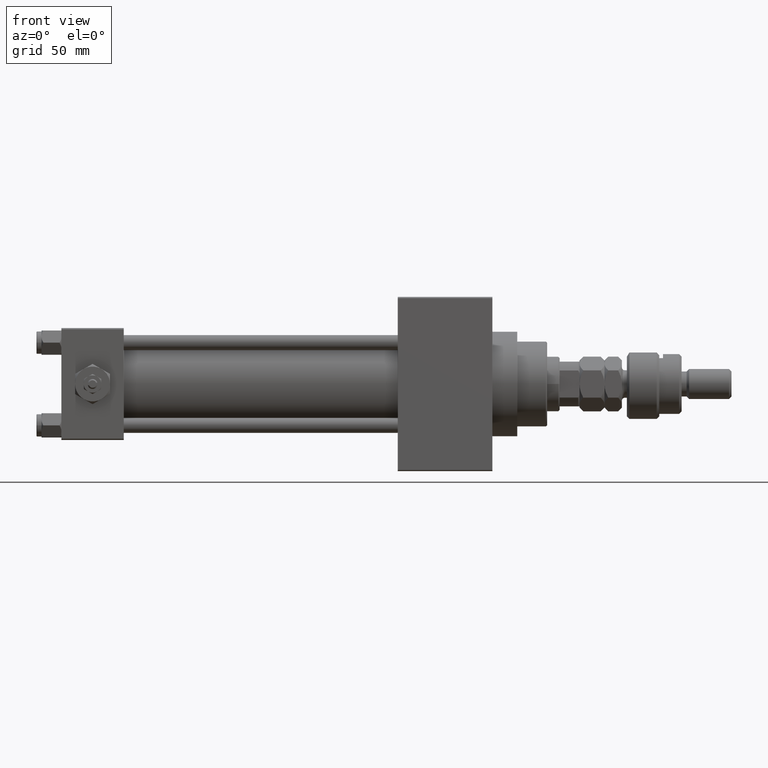
[diagram: clean part render]
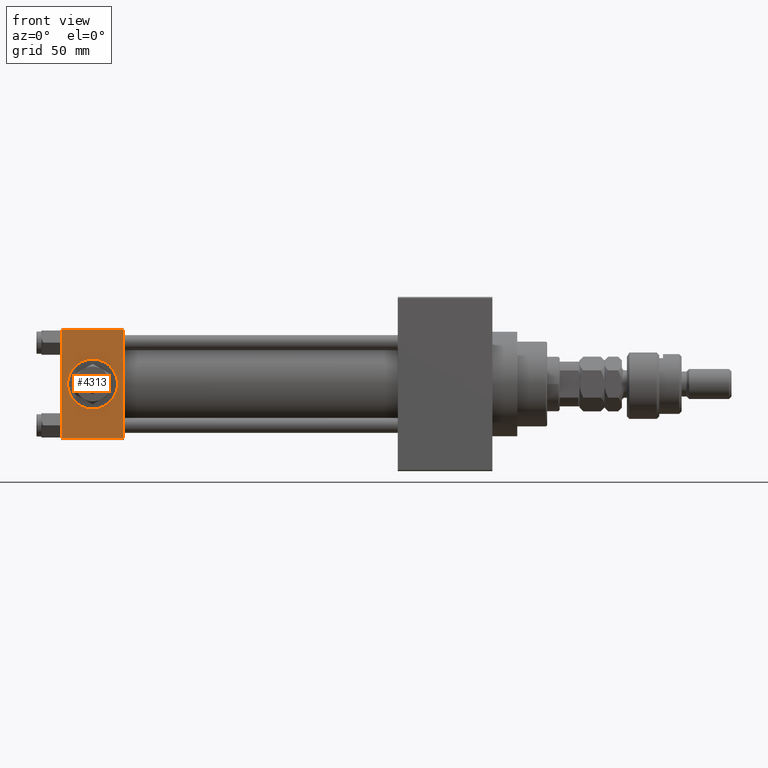
[diagram: same view with one face highlighted and labeled with its STEP entity id]
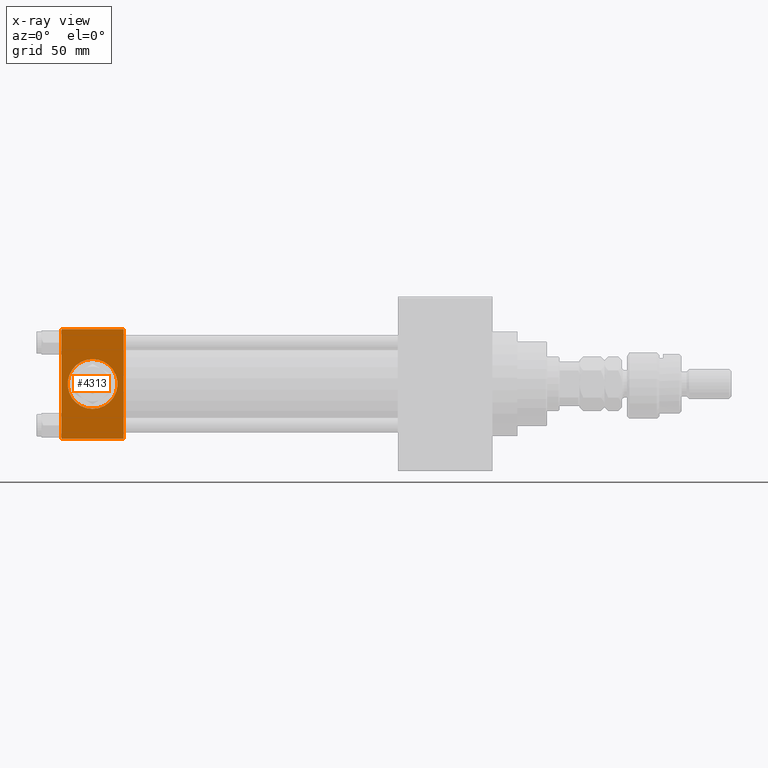
[diagram: x-ray of the same camera — body ghosted, the highlighted face saturated]
A machine part, front view. The second image highlights one B-rep face of the part: STEP entity #4313.
The next image is the same camera in x-ray: the body ghosted, the highlighted face saturated — about 0% of this face is hidden behind the body in this view.
In plain terms, the highlighted planar face has unit normal (0, 1, 0).
Its self-contained STEP definition (entity closure, byte-faithful):
#540 = ORIENTED_EDGE ( 'NONE', *, *, #33695, .F. ) ;
#1002 = DIRECTION ( 'NONE',  ( 0.000000000000000000, 0.000000000000000000, -1.000000000000000000 ) ) ;
#1595 = DIRECTION ( 'NONE',  ( 0.000000000000000000, -1.000000000000000000, -8.673617379884036705E-17 ) ) ;
#2938 = VECTOR ( 'NONE', #12254, 1000.000000000000000 ) ;
#4313 = ADVANCED_FACE ( 'NONE', ( #33193, #26619 ), #34684, .F. ) ;
#4355 = CARTESIAN_POINT ( 'NONE',  ( 25.00000000000000000, -22.50000000000000000, 22.00000000000000000 ) ) ;
#4668 = EDGE_CURVE ( 'NONE', #12677, #43927, #44735, .T. ) ;
#5561 = VERTEX_POINT ( 'NONE', #48917 ) ;
#6779 = CARTESIAN_POINT ( 'NONE',  ( 25.00000000000000000, -22.50000000000000000, -21.99999999999997158 ) ) ;
#8614 = DIRECTION ( 'NONE',  ( 1.000000000000000000, 0.000000000000000000, 0.000000000000000000 ) ) ;
#9098 = CARTESIAN_POINT ( 'NONE',  ( 0.000000000000000000, -22.50000000000000000, 22.50000000000000000 ) ) ;
#12254 = DIRECTION ( 'NONE',  ( 0.000000000000000000, 0.000000000000000000, -1.000000000000000000 ) ) ;
#12677 = VERTEX_POINT ( 'NONE', #21319 ) ;
#13433 = VERTEX_POINT ( 'NONE', #6779 ) ;
#13820 = VECTOR ( 'NONE', #20189, 1000.000000000000000 ) ;
#14926 = DIRECTION ( 'NONE',  ( 0.000000000000000000, -0.000000000000000000, 1.000000000000000000 ) ) ;
#16614 = CIRCLE ( 'NONE', #29014, 9.999999999999996447 ) ;
#16916 = LINE ( 'NONE', #36919, #39294 ) ;
#17984 = CARTESIAN_POINT ( 'NONE',  ( 12.50000000000000000, -22.50000000000000000, 0.000000000000000000 ) ) ;
#17986 = ORIENTED_EDGE ( 'NONE', *, *, #22426, .T. ) ;
#18052 = CIRCLE ( 'NONE', #46292, 9.999999999999996447 ) ;
#19349 = ORIENTED_EDGE ( 'NONE', *, *, #25267, .F. ) ;
#20189 = DIRECTION ( 'NONE',  ( -1.000000000000000000, 0.000000000000000000, 0.000000000000000000 ) ) ;
#21161 = AXIS2_PLACEMENT_3D ( 'NONE', #49099, #50584, #14926 ) ;
#21319 = CARTESIAN_POINT ( 'NONE',  ( 0.000000000000000000, -22.50000000000000000, 22.00000000000000000 ) ) ;
#21675 = EDGE_LOOP ( 'NONE', ( #540, #19349 ) ) ;
#22426 = EDGE_CURVE ( 'NONE', #45874, #12677, #39975, .T. ) ;
#24496 = EDGE_LOOP ( 'NONE', ( #49014, #48650, #48420, #17986 ) ) ;
#25267 = EDGE_CURVE ( 'NONE', #5561, #35723, #18052, .T. ) ;
#26619 = FACE_OUTER_BOUND ( 'NONE', #24496, .T. ) ;
#29014 = AXIS2_PLACEMENT_3D ( 'NONE', #45805, #1595, #30177 ) ;
#30177 = DIRECTION ( 'NONE',  ( 0.000000000000000000, 0.000000000000000000, -1.000000000000000000 ) ) ;
#31165 = CARTESIAN_POINT ( 'NONE',  ( 25.00000000000000000, -22.50000000000000000, 22.00000000000000000 ) ) ;
#33193 = FACE_BOUND ( 'NONE', #21675, .T. ) ;
#33695 = EDGE_CURVE ( 'NONE', #35723, #5561, #16614, .T. ) ;
#34684 = PLANE ( 'NONE',  #21161 ) ;
#35723 = VERTEX_POINT ( 'NONE', #39809 ) ;
#36919 = CARTESIAN_POINT ( 'NONE',  ( 25.00000000000000000, -22.50000000000000000, -21.99999999999998579 ) ) ;
#37601 = EDGE_CURVE ( 'NONE', #45874, #13433, #47606, .T. ) ;
#39294 = VECTOR ( 'NONE', #8614, 1000.000000000000000 ) ;
#39809 = CARTESIAN_POINT ( 'NONE',  ( 12.50000000000000000, -22.50000000000000000, -9.999999999999996447 ) ) ;
#39975 = LINE ( 'NONE', #4355, #13820 ) ;
#40438 = EDGE_CURVE ( 'NONE', #43927, #13433, #16916, .T. ) ;
#43927 = VERTEX_POINT ( 'NONE', #46713 ) ;
#44199 = CARTESIAN_POINT ( 'NONE',  ( 25.00000000000000000, -22.50000000000000000, 22.50000000000000000 ) ) ;
#44735 = LINE ( 'NONE', #9098, #2938 ) ;
#45805 = CARTESIAN_POINT ( 'NONE',  ( 12.50000000000000000, -22.50000000000000000, 0.000000000000000000 ) ) ;
#45874 = VERTEX_POINT ( 'NONE', #31165 ) ;
#46292 = AXIS2_PLACEMENT_3D ( 'NONE', #17984, #49480, #49742 ) ;
#46668 = VECTOR ( 'NONE', #1002, 1000.000000000000000 ) ;
#46713 = CARTESIAN_POINT ( 'NONE',  ( 0.000000000000000000, -22.50000000000000000, -21.99999999999997158 ) ) ;
#47606 = LINE ( 'NONE', #44199, #46668 ) ;
#48420 = ORIENTED_EDGE ( 'NONE', *, *, #37601, .F. ) ;
#48650 = ORIENTED_EDGE ( 'NONE', *, *, #40438, .T. ) ;
#48917 = CARTESIAN_POINT ( 'NONE',  ( 12.50000000000000178, -22.50000000000000000, 9.999999999999996447 ) ) ;
#49014 = ORIENTED_EDGE ( 'NONE', *, *, #4668, .T. ) ;
#49099 = CARTESIAN_POINT ( 'NONE',  ( 25.00000000000000000, -22.50000000000000000, 22.50000000000000000 ) ) ;
#49480 = DIRECTION ( 'NONE',  ( 0.000000000000000000, -1.000000000000000000, -8.673617379884036705E-17 ) ) ;
#49742 = DIRECTION ( 'NONE',  ( 0.000000000000000000, 0.000000000000000000, -1.000000000000000000 ) ) ;
#50584 = DIRECTION ( 'NONE',  ( -0.000000000000000000, 1.000000000000000000, 0.000000000000000000 ) ) ;